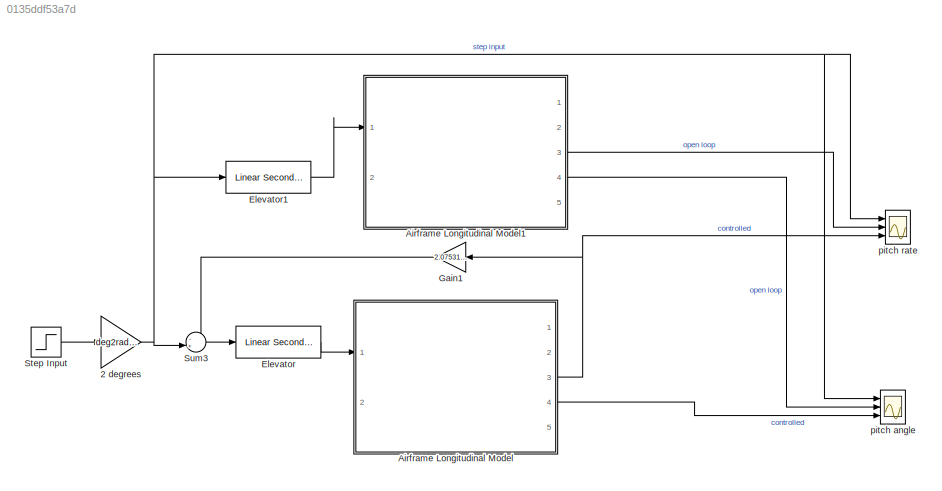
MODEL slx_0135ddf53a7d
KIND model
CONFIG AbsTol = auto
CONFIG EnableMultiTasking = off
CONFIG FixedStep = 1e-3
CONFIG MaxStep = auto
CONFIG MinStep = auto
CONFIG RelTol = 1e-3
CONFIG SampleTimeConstraint = Unconstrained
CONFIG Solver = VariableStepAuto
CONFIG SolverName = VariableStepAuto
CONFIG StartTime = 0.0
CONFIG StopTime = 80
BLOCK [Gain] 2 degrees
  Gain = deg2rad(2)
  OutDataTypeStr = Inherit: Inherit via internal rule
  ParamDataTypeStr = Inherit: Inherit via internal rule
  SaturateOnIntegerOverflow = off
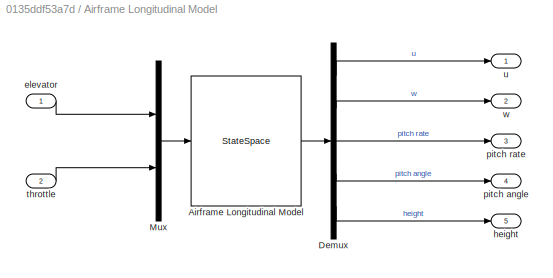
BLOCK [SubSystem] Airframe Longitudinal Model
  Ports = [2, 5]
  RequestExecContextInheritance = off
BLOCK [StateSpace] Airframe Longitudinal Model/Airframe Longitudinal Model
  A = sys.long.A
  B = sys.long.B
  C = sys.long.C
  D = sys.long.D
  InitialCondition = 0
  Ports = [1, 1]
BLOCK [Demux] Airframe Longitudinal Model/Demux
  DisplayOption = bar
  Outputs = 5
  Ports = [1, 5]
BLOCK [Mux] Airframe Longitudinal Model/Mux
  DisplayOption = bar
  Inputs = 2
  Ports = [2, 1]
BLOCK [Inport] Airframe Longitudinal Model/elevator
  IconDisplay = Port number
BLOCK [Outport] Airframe Longitudinal Model/height
  IconDisplay = Port number
  Port = 5
BLOCK [Outport] Airframe Longitudinal Model/pitch angle
  IconDisplay = Port number
  Port = 4
BLOCK [Outport] Airframe Longitudinal Model/pitch rate
  IconDisplay = Port number
  Port = 3
BLOCK [Inport] Airframe Longitudinal Model/throttle
  IconDisplay = Port number
  Port = 2
BLOCK [Outport] Airframe Longitudinal Model/u
  IconDisplay = Port number
BLOCK [Outport] Airframe Longitudinal Model/w
  IconDisplay = Port number
  Port = 2
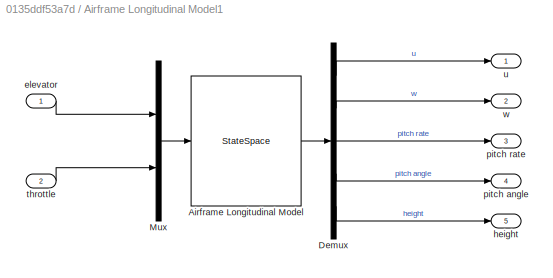
BLOCK [SubSystem] Airframe Longitudinal Model1
  Ports = [2, 5]
  RequestExecContextInheritance = off
BLOCK [StateSpace] Airframe Longitudinal Model1/Airframe Longitudinal Model
  A = sys.long.A
  B = sys.long.B
  C = sys.long.C
  D = sys.long.D
  InitialCondition = 0
  Ports = [1, 1]
BLOCK [Demux] Airframe Longitudinal Model1/Demux
  DisplayOption = bar
  Outputs = 5
  Ports = [1, 5]
BLOCK [Mux] Airframe Longitudinal Model1/Mux
  DisplayOption = bar
  Inputs = 2
  Ports = [2, 1]
BLOCK [Inport] Airframe Longitudinal Model1/elevator
  IconDisplay = Port number
BLOCK [Outport] Airframe Longitudinal Model1/height
  IconDisplay = Port number
  Port = 5
BLOCK [Outport] Airframe Longitudinal Model1/pitch angle
  IconDisplay = Port number
  Port = 4
BLOCK [Outport] Airframe Longitudinal Model1/pitch rate
  IconDisplay = Port number
  Port = 3
BLOCK [Inport] Airframe Longitudinal Model1/throttle
  IconDisplay = Port number
  Port = 2
BLOCK [Outport] Airframe Longitudinal Model1/u
  IconDisplay = Port number
BLOCK [Outport] Airframe Longitudinal Model1/w
  IconDisplay = Port number
  Port = 2
BLOCK [Reference] Elevator  REF=aerolibactuator/Linear Second-Order Actuator
  Ports = [1, 1]
  SourceBlock = aerolibactuator/Linear Second-Order Actuator
  SourceProductBaseCode = AE
  SourceProductName = Aerospace Blockset
  SourceType = LinearSecondOrderActuator
BLOCK [Reference] Elevator1  REF=aerolibactuator/Linear Second-Order Actuator
  Ports = [1, 1]
  SourceBlock = aerolibactuator/Linear Second-Order Actuator
  SourceProductBaseCode = AE
  SourceProductName = Aerospace Blockset
  SourceType = LinearSecondOrderActuator
BLOCK [Gain] Gain1
  Gain = 2.07531227652104
  OutDataTypeStr = Inherit: Inherit via internal rule
  ParamDataTypeStr = Inherit: Inherit via internal rule
  SaturateOnIntegerOverflow = off
BLOCK [Step] Step Input
BLOCK [Sum] Sum3
  IconShape = round
  InputSameDT = off
  Inputs = -+|
  OutDataTypeStr = Inherit: Inherit via internal rule
  Ports = [2, 1]
  SaturateOnIntegerOverflow = off
BLOCK [Scope] pitch angle
  Floating = off
  NumInputPorts = 3
  Ports = [3]
  ScopeSpecificationString = Simulink.scopes.TimeScopeBlockCfg('CurrentConfiguration', extmgr.ConfigurationSet(extmgr.Configuration('Core','General UI',true,'FigureColor',[1 1 1]),extmgr.Configuration('Core','Source UI',true),extmgr.Configuration('Sources','WiredSimulink',true,'DataLoggingVariableName','ScopeData2'),extmgr.Configuration('Visuals','Time Domain',true,'SerializedDisplays',{struct('MinYLimReal','-0.00676','MaxYLi...<+2246ch>
BLOCK [Scope] pitch rate
  Floating = off
  NumInputPorts = 3
  Ports = [3]
  ScopeSpecificationString = Simulink.scopes.TimeScopeBlockCfg('CurrentConfiguration', extmgr.ConfigurationSet(extmgr.Configuration('Core','General UI',true,'FigureColor',[1 1 1]),extmgr.Configuration('Core','Source UI',true),extmgr.Configuration('Sources','WiredSimulink',true,'DataLoggingVariableName','ScopeData2'),extmgr.Configuration('Visuals','Time Domain',true,'SerializedDisplays',{struct('MinYLimReal','-0.02487','MaxYLi...<+2284ch>
NET 2 degrees:1 -> Elevator1:1, Sum3:2, pitch angle:1, pitch rate:1
LINE Airframe Longitudinal Model/Airframe Longitudinal Model:1 -> Airframe Longitudinal Model/Demux:1
LINE Airframe Longitudinal Model/Demux:1 -> Airframe Longitudinal Model/u:1
LINE Airframe Longitudinal Model/Demux:2 -> Airframe Longitudinal Model/w:1
LINE Airframe Longitudinal Model/Demux:3 -> Airframe Longitudinal Model/pitch rate:1
LINE Airframe Longitudinal Model/Demux:4 -> Airframe Longitudinal Model/pitch angle:1
LINE Airframe Longitudinal Model/Demux:5 -> Airframe Longitudinal Model/height:1
LINE Airframe Longitudinal Model/Mux:1 -> Airframe Longitudinal Model/Airframe Longitudinal Model:1
LINE Airframe Longitudinal Model/elevator:1 -> Airframe Longitudinal Model/Mux:1
LINE Airframe Longitudinal Model/throttle:1 -> Airframe Longitudinal Model/Mux:2
LINE Airframe Longitudinal Model1/Airframe Longitudinal Model:1 -> Airframe Longitudinal Model1/Demux:1
LINE Airframe Longitudinal Model1/Demux:1 -> Airframe Longitudinal Model1/u:1
LINE Airframe Longitudinal Model1/Demux:2 -> Airframe Longitudinal Model1/w:1
LINE Airframe Longitudinal Model1/Demux:3 -> Airframe Longitudinal Model1/pitch rate:1
LINE Airframe Longitudinal Model1/Demux:4 -> Airframe Longitudinal Model1/pitch angle:1
LINE Airframe Longitudinal Model1/Demux:5 -> Airframe Longitudinal Model1/height:1
LINE Airframe Longitudinal Model1/Mux:1 -> Airframe Longitudinal Model1/Airframe Longitudinal Model:1
LINE Airframe Longitudinal Model1/elevator:1 -> Airframe Longitudinal Model1/Mux:1
LINE Airframe Longitudinal Model1/throttle:1 -> Airframe Longitudinal Model1/Mux:2
LINE Airframe Longitudinal Model1:3 -> pitch rate:2
LINE Airframe Longitudinal Model1:4 -> pitch angle:2
NET Airframe Longitudinal Model:3 -> Gain1:1, pitch rate:3
LINE Airframe Longitudinal Model:4 -> pitch angle:3
LINE Elevator1:1 -> Airframe Longitudinal Model1:1
LINE Elevator:1 -> Airframe Longitudinal Model:1
LINE Gain1:1 -> Sum3:1
LINE Step Input:1 -> 2 degrees:1
LINE Sum3:1 -> Elevator:1
note: NET lines group one-source signal fan-out (src -> all destinations, sorted); 1:1 wires keep LINE
